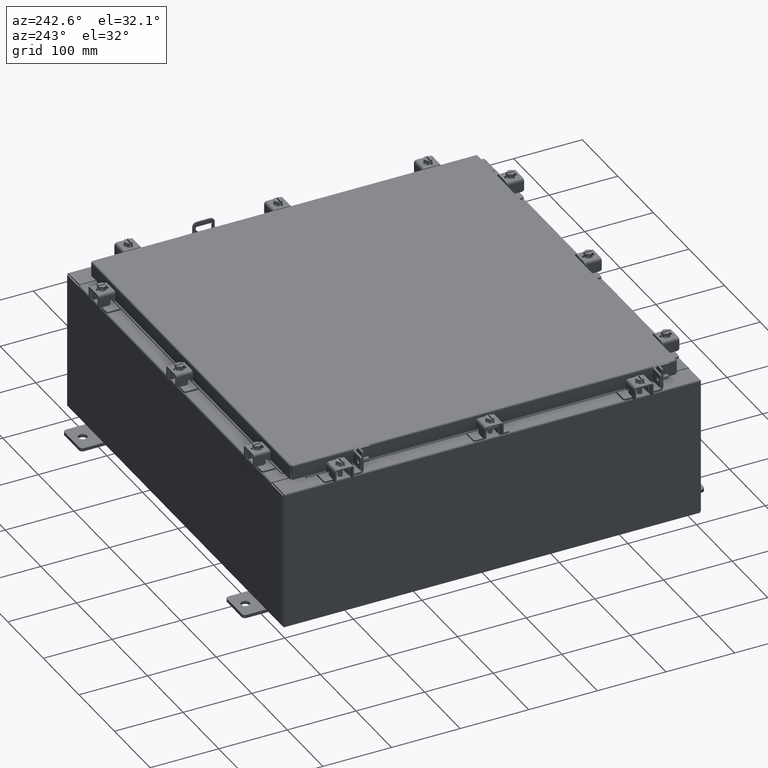
[diagram: clean part render]
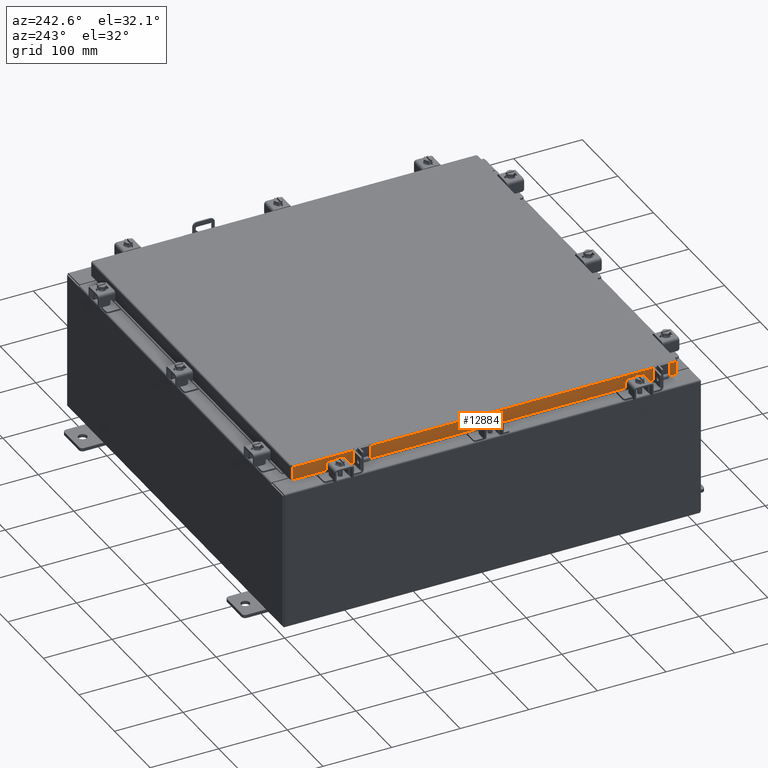
[diagram: same view with one face highlighted and labeled with its STEP entity id]
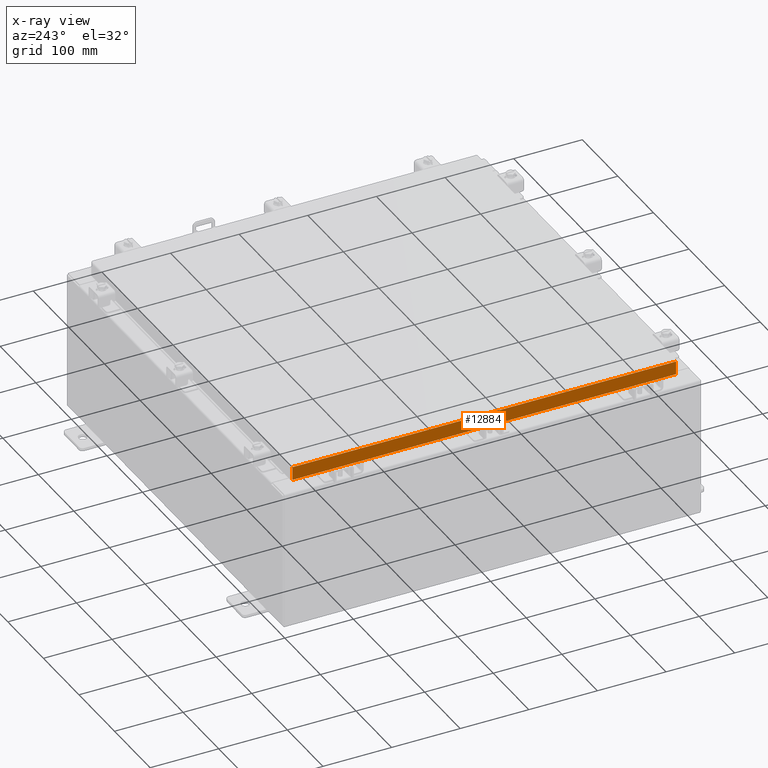
[diagram: x-ray of the same camera — body ghosted, the highlighted face saturated]
A machine part, auxiliary view. The second image highlights one B-rep face of the part: STEP entity #12884.
The next image is the same camera in x-ray: the body ghosted, the highlighted face saturated — about 0% of this face is hidden behind the body in this view.
In plain terms, the highlighted planar face has unit normal (1, 0, -0).
Its self-contained STEP definition (entity closure, byte-faithful):
#78 = LINE ( 'NONE', #10735, #19223 ) ;
#110 = CARTESIAN_POINT ( 'NONE',  ( -11.09400000000000100, 11.00515786437627100, -0.8499999999999966500 ) ) ;
#243 = DIRECTION ( 'NONE',  ( -0.0000000000000000000, 1.000000000000000000, -0.0000000000000000000 ) ) ;
#963 = EDGE_CURVE ( 'NONE', #10322, #14365, #2738, .T. ) ;
#1007 = CARTESIAN_POINT ( 'NONE',  ( -11.09399999999999200, 10.25515786437627200, -0.8500000000000020900 ) ) ;
#1051 = VERTEX_POINT ( 'NONE', #1007 ) ;
#1743 = ORIENTED_EDGE ( 'NONE', *, *, #7953, .F. ) ;
#2637 = CARTESIAN_POINT ( 'NONE',  ( -11.09399999999999900, 11.00515786437626900, -0.08770000000000026400 ) ) ;
#2737 = EDGE_CURVE ( 'NONE', #1051, #5852, #10314, .T. ) ;
#2738 = LINE ( 'NONE', #7875, #20753 ) ;
#4107 = LINE ( 'NONE', #9016, #8200 ) ;
#4441 = CARTESIAN_POINT ( 'NONE',  ( -11.09399999999999900, -11.00515786437626700, -0.07470000000000015500 ) ) ;
#4536 = LINE ( 'NONE', #19638, #17362 ) ;
#4761 = EDGE_CURVE ( 'NONE', #10322, #5852, #4536, .T. ) ;
#5823 = DIRECTION ( 'NONE',  ( 3.297150052053608400E-031, -1.000000000000000000, -8.987264781119276500E-046 ) ) ;
#5852 = VERTEX_POINT ( 'NONE', #110 ) ;
#5955 = VERTEX_POINT ( 'NONE', #19505 ) ;
#6176 = VECTOR ( 'NONE', #18537, 39.37007874015748100 ) ;
#6285 = AXIS2_PLACEMENT_3D ( 'NONE', #15598, #22568, #12180 ) ;
#6882 = PLANE ( 'NONE',  #6285 ) ;
#7578 = LINE ( 'NONE', #4441, #16330 ) ;
#7875 = CARTESIAN_POINT ( 'NONE',  ( -11.09399999999999900, -11.09400000000000100, -0.08770000000000026400 ) ) ;
#7953 = EDGE_CURVE ( 'NONE', #5955, #14051, #4107, .T. ) ;
#8200 = VECTOR ( 'NONE', #19576, 39.37007874015748100 ) ;
#9016 = CARTESIAN_POINT ( 'NONE',  ( -11.09400000000000100, -11.09400000000000100, -0.8499999999999999800 ) ) ;
#9125 = EDGE_CURVE ( 'NONE', #14365, #5955, #7578, .T. ) ;
#9890 = CARTESIAN_POINT ( 'NONE',  ( -11.09400000000000100, -11.09400000000000100, -0.8499999999999999800 ) ) ;
#10314 = LINE ( 'NONE', #9890, #6176 ) ;
#10322 = VERTEX_POINT ( 'NONE', #2637 ) ;
#10735 = CARTESIAN_POINT ( 'NONE',  ( -11.09399999999999200, -10.25515786437626400, -0.8500000000000020900 ) ) ;
#11548 = ORIENTED_EDGE ( 'NONE', *, *, #963, .F. ) ;
#12180 = DIRECTION ( 'NONE',  ( -2.818880942772360100E-015, 0.0000000000000000000, -1.000000000000000000 ) ) ;
#12352 = ORIENTED_EDGE ( 'NONE', *, *, #9125, .F. ) ;
#12884 = ADVANCED_FACE ( 'NONE', ( #14682 ), #6882, .F. ) ;
#13227 = DIRECTION ( 'NONE',  ( -2.818880942772360100E-015, 6.982962677686267500E-015, -1.000000000000000000 ) ) ;
#14051 = VERTEX_POINT ( 'NONE', #18377 ) ;
#14365 = VERTEX_POINT ( 'NONE', #15707 ) ;
#14682 = FACE_OUTER_BOUND ( 'NONE', #15709, .T. ) ;
#15598 = CARTESIAN_POINT ( 'NONE',  ( -11.09399999999999900, 0.0000000000000000000, 3.168943672650545400E-014 ) ) ;
#15707 = CARTESIAN_POINT ( 'NONE',  ( -11.09399999999999900, -11.00515786437626700, -0.08770000000000026400 ) ) ;
#15709 = EDGE_LOOP ( 'NONE', ( #11548, #17079, #21332, #20039, #1743, #12352 ) ) ;
#16330 = VECTOR ( 'NONE', #13227, 39.37007874015748100 ) ;
#17079 = ORIENTED_EDGE ( 'NONE', *, *, #4761, .T. ) ;
#17362 = VECTOR ( 'NONE', #19589, 39.37007874015748100 ) ;
#18377 = CARTESIAN_POINT ( 'NONE',  ( -11.09399999999999200, -10.25515786437626400, -0.8500000000000020900 ) ) ;
#18505 = EDGE_CURVE ( 'NONE', #14051, #1051, #78, .T. ) ;
#18537 = DIRECTION ( 'NONE',  ( 4.379057701015054300E-047, 1.000000000000000000, 1.169666303398706800E-016 ) ) ;
#19223 = VECTOR ( 'NONE', #243, 39.37007874015748100 ) ;
#19505 = CARTESIAN_POINT ( 'NONE',  ( -11.09400000000000100, -11.00515786437626200, -0.8499999999999999800 ) ) ;
#19576 = DIRECTION ( 'NONE',  ( 4.379057701015054300E-047, 1.000000000000000000, 1.169666303398706800E-016 ) ) ;
#19589 = DIRECTION ( 'NONE',  ( -2.818880942772360100E-015, 6.982962677686267500E-015, -1.000000000000000000 ) ) ;
#19638 = CARTESIAN_POINT ( 'NONE',  ( -11.09399999999999900, 11.00515786437626700, 1.081811805491048200E-013 ) ) ;
#20039 = ORIENTED_EDGE ( 'NONE', *, *, #18505, .F. ) ;
#20753 = VECTOR ( 'NONE', #5823, 39.37007874015748100 ) ;
#21332 = ORIENTED_EDGE ( 'NONE', *, *, #2737, .F. ) ;
#22568 = DIRECTION ( 'NONE',  ( 1.000000000000000000, 3.297150052053607500E-031, -2.818880942772360100E-015 ) ) ;